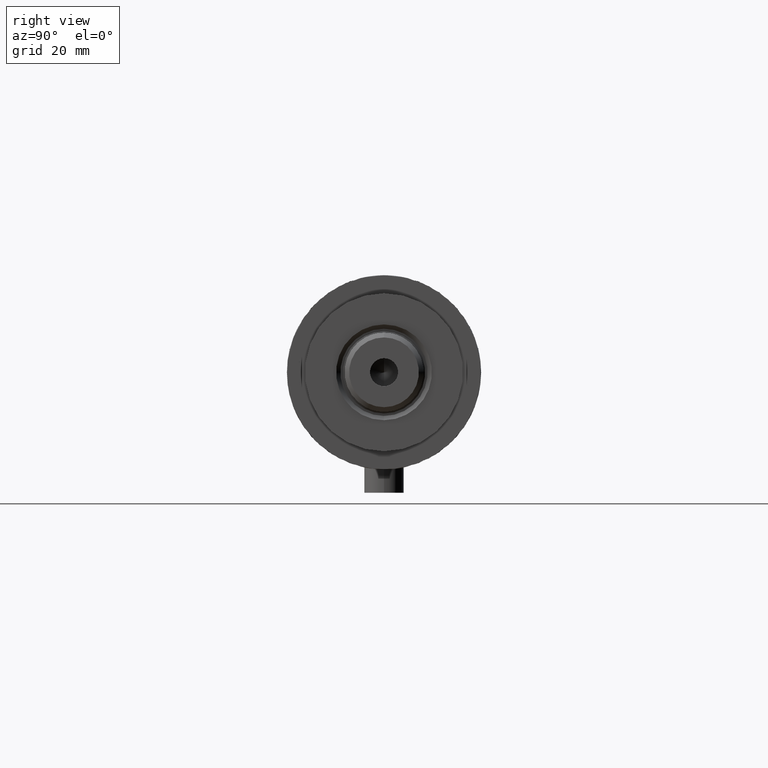
[diagram: clean part render]
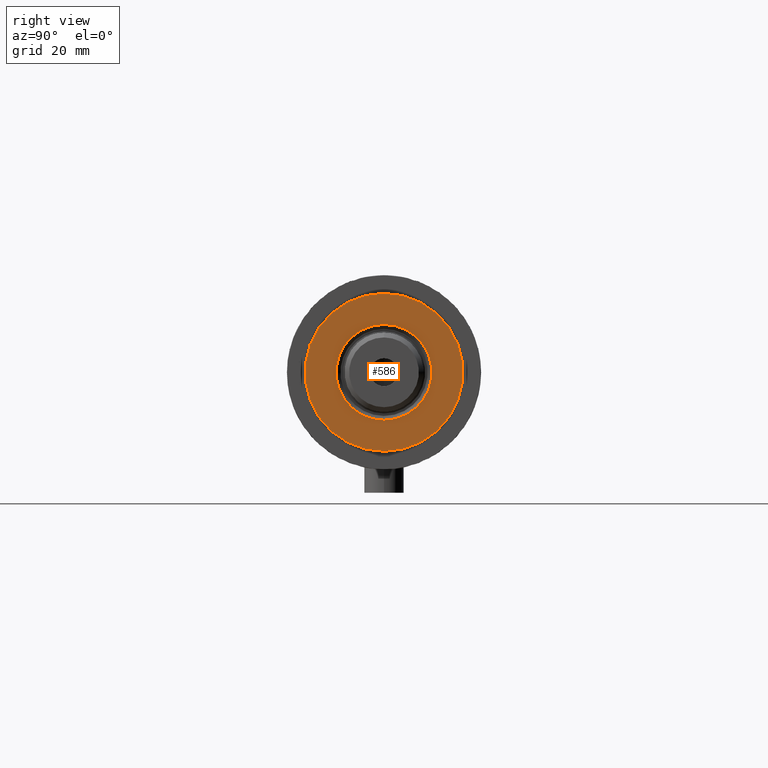
[diagram: same view with one face highlighted and labeled with its STEP entity id]
A machine part, right view. The second image highlights one B-rep face of the part: STEP entity #586.
In plain terms, the highlighted planar face has unit normal (1, 0, -0).
Its self-contained STEP definition (entity closure, byte-faithful):
#16 = CARTESIAN_POINT ( 'NONE',  ( 0.000000000000000000, 0.000000000000000000, 35.50000000000000711 ) ) ;
#103 = AXIS2_PLACEMENT_3D ( 'NONE', #4089, #437, #3739 ) ;
#122 = DIRECTION ( 'NONE',  ( 1.000000000000000000, 0.000000000000000000, 0.000000000000000000 ) ) ;
#199 = VERTEX_POINT ( 'NONE', #2087 ) ;
#373 = VERTEX_POINT ( 'NONE', #1475 ) ;
#378 = EDGE_LOOP ( 'NONE', ( #1068, #1249 ) ) ;
#437 = DIRECTION ( 'NONE',  ( 0.000000000000000000, 0.000000000000000000, 1.000000000000000000 ) ) ;
#586 = ADVANCED_FACE ( 'NONE', ( #4271, #4637 ), #3958, .T. ) ;
#648 = EDGE_CURVE ( 'NONE', #3687, #199, #2195, .T. ) ;
#997 = DIRECTION ( 'NONE',  ( 1.000000000000000000, 0.000000000000000000, -0.000000000000000000 ) ) ;
#1068 = ORIENTED_EDGE ( 'NONE', *, *, #648, .T. ) ;
#1249 = ORIENTED_EDGE ( 'NONE', *, *, #1834, .T. ) ;
#1446 = DIRECTION ( 'NONE',  ( 0.000000000000000000, 0.000000000000000000, 1.000000000000000000 ) ) ;
#1453 = AXIS2_PLACEMENT_3D ( 'NONE', #1969, #1945, #122 ) ;
#1475 = CARTESIAN_POINT ( 'NONE',  ( -14.54999999999999361, 1.781861092759398299E-15, 35.50000000000000711 ) ) ;
#1567 = CARTESIAN_POINT ( 'NONE',  ( -24.00000000000000355, 0.000000000000000000, 35.50000000000000711 ) ) ;
#1748 = EDGE_CURVE ( 'NONE', #3866, #373, #3888, .T. ) ;
#1813 = AXIS2_PLACEMENT_3D ( 'NONE', #2796, #2082, #3555 ) ;
#1834 = EDGE_CURVE ( 'NONE', #199, #3687, #2885, .T. ) ;
#1945 = DIRECTION ( 'NONE',  ( -0.000000000000000000, -0.000000000000000000, -1.000000000000000000 ) ) ;
#1969 = CARTESIAN_POINT ( 'NONE',  ( 0.000000000000000000, 0.000000000000000000, 35.50000000000000711 ) ) ;
#2082 = DIRECTION ( 'NONE',  ( 0.000000000000000000, 0.000000000000000000, 1.000000000000000000 ) ) ;
#2087 = CARTESIAN_POINT ( 'NONE',  ( 24.00000000000000355, 2.939152317953648289E-15, 35.50000000000000711 ) ) ;
#2195 = CIRCLE ( 'NONE', #1813, 24.00000000000000355 ) ;
#2198 = CIRCLE ( 'NONE', #1453, 14.54999999999999361 ) ;
#2610 = DIRECTION ( 'NONE',  ( 1.000000000000000000, 0.000000000000000000, 0.000000000000000000 ) ) ;
#2661 = CARTESIAN_POINT ( 'NONE',  ( 14.54999999999999361, 0.000000000000000000, 35.50000000000000711 ) ) ;
#2684 = EDGE_CURVE ( 'NONE', #373, #3866, #2198, .T. ) ;
#2796 = CARTESIAN_POINT ( 'NONE',  ( 0.000000000000000000, 0.000000000000000000, 35.50000000000000711 ) ) ;
#2885 = CIRCLE ( 'NONE', #103, 24.00000000000000355 ) ;
#2898 = CARTESIAN_POINT ( 'NONE',  ( 0.000000000000000000, 0.000000000000000000, 35.50000000000000711 ) ) ;
#2915 = DIRECTION ( 'NONE',  ( -0.000000000000000000, -0.000000000000000000, -1.000000000000000000 ) ) ;
#3379 = ORIENTED_EDGE ( 'NONE', *, *, #1748, .T. ) ;
#3555 = DIRECTION ( 'NONE',  ( 1.000000000000000000, 0.000000000000000000, 0.000000000000000000 ) ) ;
#3583 = AXIS2_PLACEMENT_3D ( 'NONE', #2898, #1446, #997 ) ;
#3687 = VERTEX_POINT ( 'NONE', #1567 ) ;
#3739 = DIRECTION ( 'NONE',  ( 1.000000000000000000, 0.000000000000000000, 0.000000000000000000 ) ) ;
#3866 = VERTEX_POINT ( 'NONE', #2661 ) ;
#3888 = CIRCLE ( 'NONE', #4273, 14.54999999999999361 ) ;
#3958 = PLANE ( 'NONE',  #3583 ) ;
#4089 = CARTESIAN_POINT ( 'NONE',  ( 0.000000000000000000, 0.000000000000000000, 35.50000000000000711 ) ) ;
#4271 = FACE_BOUND ( 'NONE', #4310, .T. ) ;
#4273 = AXIS2_PLACEMENT_3D ( 'NONE', #16, #2915, #2610 ) ;
#4310 = EDGE_LOOP ( 'NONE', ( #3379, #4529 ) ) ;
#4529 = ORIENTED_EDGE ( 'NONE', *, *, #2684, .T. ) ;
#4637 = FACE_OUTER_BOUND ( 'NONE', #378, .T. ) ;